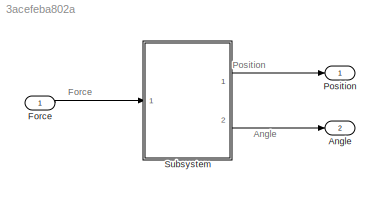
MODEL slx_3acefeba802a
KIND model
CONFIG AbsTol = auto
CONFIG EnableMultiTasking = off
CONFIG FixedStep = auto
CONFIG MaxStep = auto
CONFIG MinStep = auto
CONFIG RelTol = 1e-3
CONFIG SampleTimeConstraint = Unconstrained
CONFIG Solver = ode45
CONFIG SolverName = ode45
CONFIG StartTime = 0.0
CONFIG StopTime = 10.0
BLOCK [Outport] Angle
  IconDisplay = Port number
  Port = 2
BLOCK [Inport] Force
  IconDisplay = Port number
BLOCK [Outport] Position
  IconDisplay = Port number
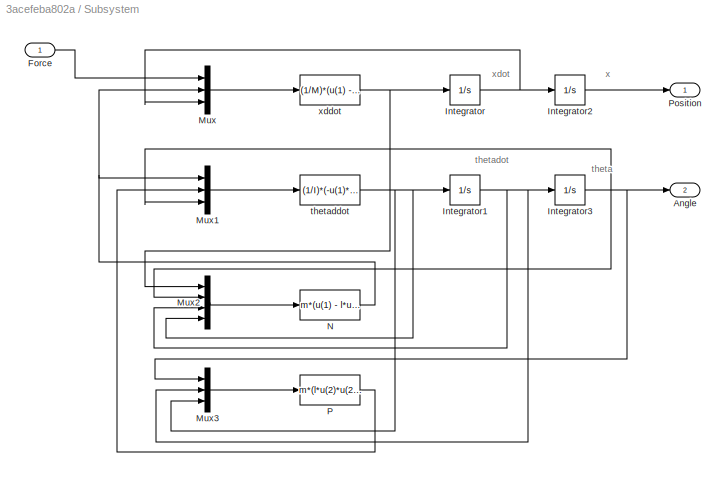
BLOCK [SubSystem] Subsystem
  Ports = [1, 2]
  RequestExecContextInheritance = off
  Variant = off
BLOCK [Outport] Subsystem/Angle
  IconDisplay = Port number
  Port = 2
BLOCK [Inport] Subsystem/Force
  IconDisplay = Port number
BLOCK [Integrator] Subsystem/Integrator
  ContinuousStateAttributes = 'xdot'
  Ports = [1, 1]
BLOCK [Integrator] Subsystem/Integrator1
  ContinuousStateAttributes = 'thetadot'
  Ports = [1, 1]
BLOCK [Integrator] Subsystem/Integrator2
  ContinuousStateAttributes = 'x'
  Ports = [1, 1]
BLOCK [Integrator] Subsystem/Integrator3
  ContinuousStateAttributes = 'theta'
  InitialCondition = pi
  Ports = [1, 1]
BLOCK [Mux] Subsystem/Mux
  DisplayOption = bar
  Inputs = 3
  Ports = [3, 1]
BLOCK [Mux] Subsystem/Mux1
  DisplayOption = bar
  Inputs = 3
  Ports = [3, 1]
BLOCK [Mux] Subsystem/Mux2
  DisplayOption = bar
  Ports = [4, 1]
BLOCK [Mux] Subsystem/Mux3
  DisplayOption = bar
  Inputs = 3
  Ports = [3, 1]
BLOCK [Fcn] Subsystem/N
  Expr = m*(u(1) - l*u(3)*u(3)*sin(u(2)) + l*u(4)*cos(u(2)))
BLOCK [Fcn] Subsystem/P
  Expr = m*(l*u(2)*u(2)*cos(u(1)) + l*u(3)*sin(u(1)) + g)
BLOCK [Outport] Subsystem/Position
  IconDisplay = Port number
BLOCK [Fcn] Subsystem/thetaddot
  Expr = (1/I)*(-u(1)*l*cos(u(3)) - u(2)*l*sin(u(3)))
BLOCK [Fcn] Subsystem/xddot
  Expr = (1/M)*(u(1) - u(2) - b*u(3))
ANNOTATION (root): Angle
ANNOTATION (root): Force
ANNOTATION (root): Position
ANNOTATION Subsystem: theta
ANNOTATION Subsystem: thetadot
ANNOTATION Subsystem: x
ANNOTATION Subsystem: xdot
LINE Force:1 -> Subsystem:1
LINE Subsystem/Force:1 -> Subsystem/Mux:1
NET Subsystem/Integrator1:1 -> Subsystem/Integrator3:1, Subsystem/Mux2:3, Subsystem/Mux3:2
LINE Subsystem/Integrator2:1 -> Subsystem/Position:1
NET Subsystem/Integrator3:1 -> Subsystem/Angle:1, Subsystem/Mux1:3, Subsystem/Mux2:2, Subsystem/Mux3:1
NET Subsystem/Integrator:1 -> Subsystem/Integrator2:1, Subsystem/Mux:3
LINE Subsystem/Mux1:1 -> Subsystem/thetaddot:1
LINE Subsystem/Mux2:1 -> Subsystem/N:1
LINE Subsystem/Mux3:1 -> Subsystem/P:1
LINE Subsystem/Mux:1 -> Subsystem/xddot:1
NET Subsystem/N:1 -> Subsystem/Mux1:1, Subsystem/Mux:2
LINE Subsystem/P:1 -> Subsystem/Mux1:2
NET Subsystem/thetaddot:1 -> Subsystem/Integrator1:1, Subsystem/Mux2:4, Subsystem/Mux3:3
NET Subsystem/xddot:1 -> Subsystem/Integrator:1, Subsystem/Mux2:1
LINE Subsystem:1 -> Position:1
LINE Subsystem:2 -> Angle:1
note: NET lines group one-source signal fan-out (src -> all destinations, sorted); 1:1 wires keep LINE
